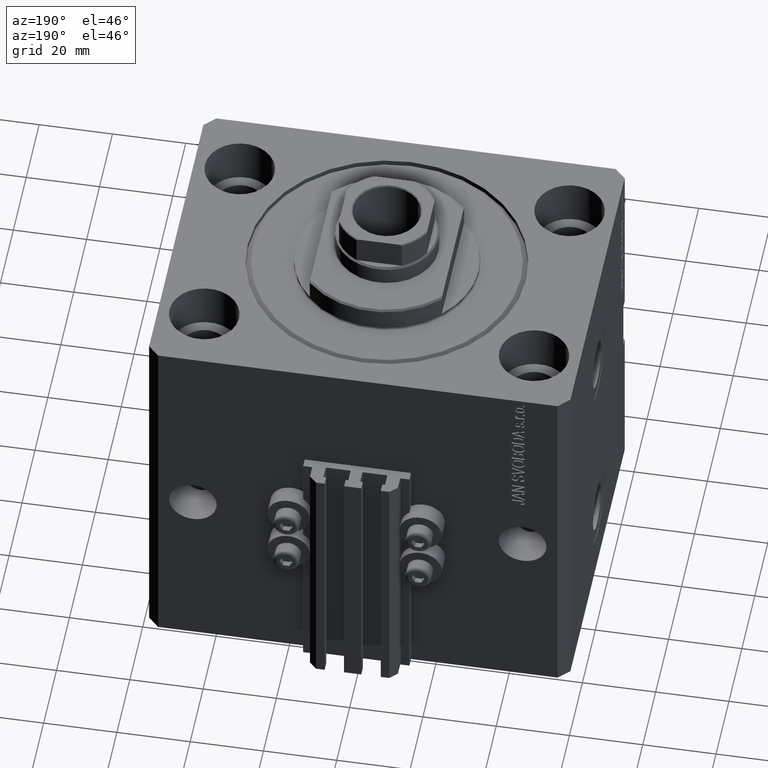
[diagram: clean part render]
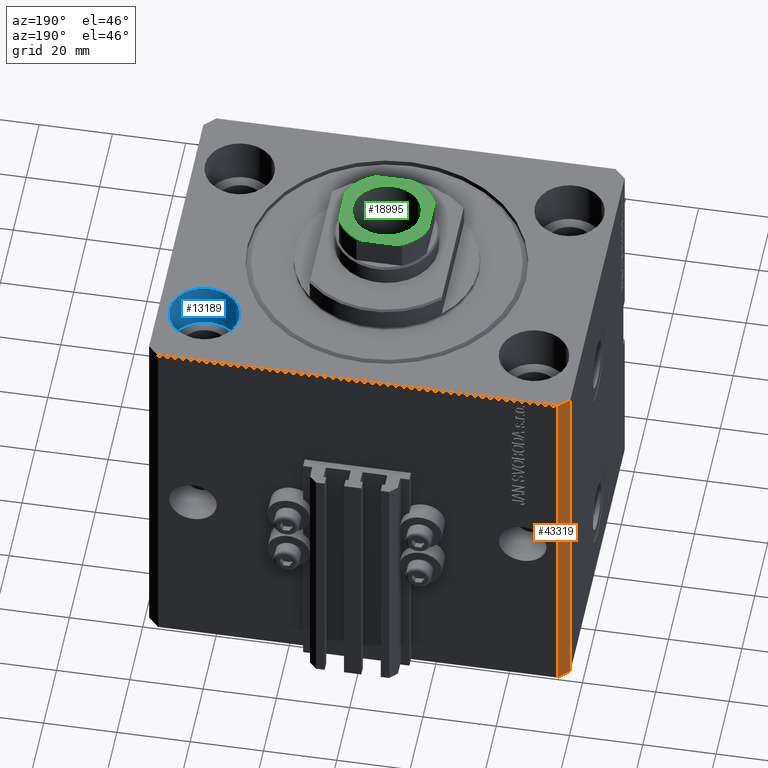
[diagram: same view with three faces highlighted in distinct colors, each labeled with its STEP entity id]
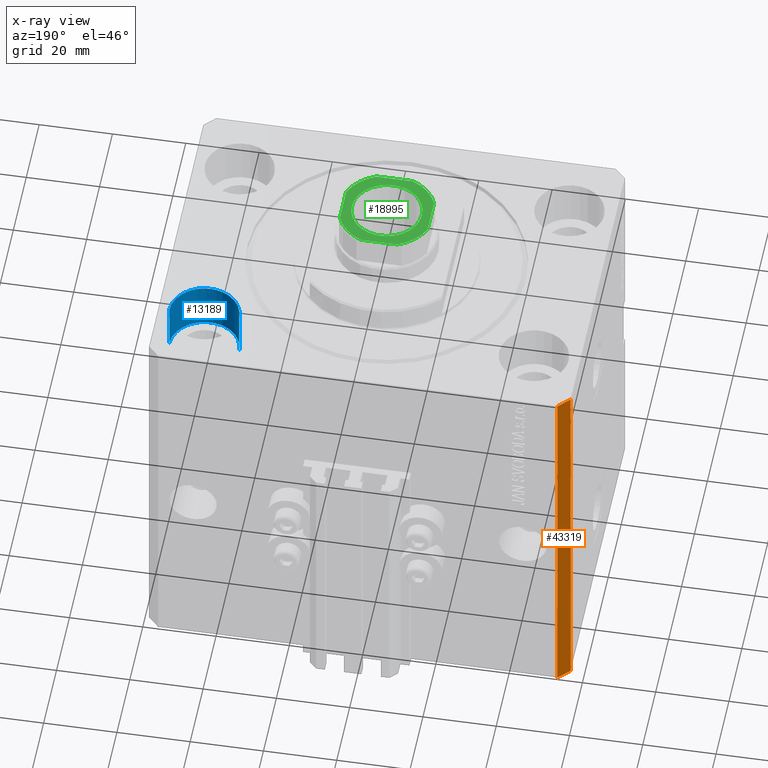
[diagram: x-ray of the same camera — body ghosted, the three highlighted faces saturated]
A machine part, auxiliary view with three faces highlighted in distinct colors.
The next image is the same camera in x-ray (body ghosted, the three faces saturated) — at least one of them is partly hidden behind the body in this view.
Their STEP definitions:

[orange] entity #43319 — the highlighted planar face has unit normal (-0.7071, 0.7071, 0).
#2096 = VERTEX_POINT ( 'NONE', #13279 ) ;
#3675 = DIRECTION ( 'NONE',  ( -0.7071067811865483499, -0.7071067811865466846, 0.000000000000000000 ) ) ;
#5865 = CARTESIAN_POINT ( 'NONE',  ( -54.49999999999999289, 45.00000000000000000, 0.000000000000000000 ) ) ;
#7023 = VERTEX_POINT ( 'NONE', #24731 ) ;
#7608 = LINE ( 'NONE', #37853, #40653 ) ;
#8725 = DIRECTION ( 'NONE',  ( 0.000000000000000000, 0.000000000000000000, 1.000000000000000000 ) ) ;
#9216 = LINE ( 'NONE', #11938, #17080 ) ;
#10331 = EDGE_CURVE ( 'NONE', #32319, #7023, #46811, .T. ) ;
#11938 = CARTESIAN_POINT ( 'NONE',  ( -54.49999999999999289, 45.00000000000000000, -105.0000000000000000 ) ) ;
#13279 = CARTESIAN_POINT ( 'NONE',  ( -54.49999999999999289, 45.00000000000000000, -105.0000000000000000 ) ) ;
#14122 = DIRECTION ( 'NONE',  ( -0.7071067811865483499, -0.7071067811865465735, 0.000000000000000000 ) ) ;
#14288 = ORIENTED_EDGE ( 'NONE', *, *, #30201, .F. ) ;
#14356 = VECTOR ( 'NONE', #27873, 1000.000000000000000 ) ;
#14747 = ORIENTED_EDGE ( 'NONE', *, *, #10331, .T. ) ;
#15787 = DIRECTION ( 'NONE',  ( -0.7071067811865483499, -0.7071067811865466846, 0.000000000000000000 ) ) ;
#16511 = CARTESIAN_POINT ( 'NONE',  ( -54.49999999999999289, 45.00000000000000000, -105.0000000000000000 ) ) ;
#17080 = VECTOR ( 'NONE', #8725, 1000.000000000000000 ) ;
#19499 = LINE ( 'NONE', #16511, #22544 ) ;
#20825 = ORIENTED_EDGE ( 'NONE', *, *, #29103, .T. ) ;
#22544 = VECTOR ( 'NONE', #15787, 1000.000000000000000 ) ;
#24731 = CARTESIAN_POINT ( 'NONE',  ( -57.49999999999998579, 42.00000000000000711, 0.000000000000000000 ) ) ;
#27873 = DIRECTION ( 'NONE',  ( 0.000000000000000000, 0.000000000000000000, 1.000000000000000000 ) ) ;
#29103 = EDGE_CURVE ( 'NONE', #2096, #32319, #19499, .T. ) ;
#30201 = EDGE_CURVE ( 'NONE', #2096, #46062, #9216, .T. ) ;
#31559 = CARTESIAN_POINT ( 'NONE',  ( -57.49999999999998579, 42.00000000000000711, -105.0000000000000000 ) ) ;
#32319 = VERTEX_POINT ( 'NONE', #41061 ) ;
#34052 = EDGE_CURVE ( 'NONE', #46062, #7023, #7608, .T. ) ;
#34076 = EDGE_LOOP ( 'NONE', ( #45140, #14288, #20825, #14747 ) ) ;
#36507 = FACE_OUTER_BOUND ( 'NONE', #34076, .T. ) ;
#36758 = DIRECTION ( 'NONE',  ( -0.7071067811865466846, 0.7071067811865484609, 0.000000000000000000 ) ) ;
#37013 = AXIS2_PLACEMENT_3D ( 'NONE', #48562, #36758, #14122 ) ;
#37853 = CARTESIAN_POINT ( 'NONE',  ( -54.49999999999999289, 45.00000000000000000, 0.000000000000000000 ) ) ;
#40653 = VECTOR ( 'NONE', #3675, 1000.000000000000000 ) ;
#41061 = CARTESIAN_POINT ( 'NONE',  ( -57.49999999999998579, 42.00000000000000711, -105.0000000000000000 ) ) ;
#41191 = PLANE ( 'NONE',  #37013 ) ;
#43319 = ADVANCED_FACE ( 'NONE', ( #36507 ), #41191, .T. ) ;
#45140 = ORIENTED_EDGE ( 'NONE', *, *, #34052, .F. ) ;
#46062 = VERTEX_POINT ( 'NONE', #5865 ) ;
#46811 = LINE ( 'NONE', #31559, #14356 ) ;
#48562 = CARTESIAN_POINT ( 'NONE',  ( -54.49999999999999289, 45.00000000000000000, -105.0000000000000000 ) ) ;

[blue] entity #13189 — the highlighted cylindrical surface (edge-blend (fillet) strip) has radius 9.5 mm, axis along (0, 0, 1).
#294 = EDGE_CURVE ( 'NONE', #9908, #3327, #17566, .T. ) ;
#867 = CIRCLE ( 'NONE', #1638, 9.500000000000001776 ) ;
#1035 = CARTESIAN_POINT ( 'NONE',  ( 45.00000000000000000, 27.50000000000001776, -13.00000000000000000 ) ) ;
#1638 = AXIS2_PLACEMENT_3D ( 'NONE', #1035, #34974, #46308 ) ;
#3327 = VERTEX_POINT ( 'NONE', #46402 ) ;
#4339 = DIRECTION ( 'NONE',  ( 0.000000000000000000, 0.000000000000000000, 1.000000000000000000 ) ) ;
#4678 = ORIENTED_EDGE ( 'NONE', *, *, #294, .T. ) ;
#5313 = EDGE_CURVE ( 'NONE', #9908, #7510, #867, .T. ) ;
#6241 = DIRECTION ( 'NONE',  ( -0.000000000000000000, -0.000000000000000000, 1.000000000000000000 ) ) ;
#7102 = CARTESIAN_POINT ( 'NONE',  ( 35.50000000000000000, 27.50000000000001776, -13.00000000000000000 ) ) ;
#7510 = VERTEX_POINT ( 'NONE', #12780 ) ;
#8878 = CIRCLE ( 'NONE', #15170, 9.500000000000001776 ) ;
#9629 = EDGE_CURVE ( 'NONE', #3327, #36798, #8878, .T. ) ;
#9908 = VERTEX_POINT ( 'NONE', #7102 ) ;
#9958 = EDGE_LOOP ( 'NONE', ( #17734, #4678, #46975, #41838 ) ) ;
#12780 = CARTESIAN_POINT ( 'NONE',  ( 54.50000000000000000, 27.50000000000001776, -13.00000000000000000 ) ) ;
#13189 = ADVANCED_FACE ( 'NONE', ( #20134 ), #25042, .F. ) ;
#15170 = AXIS2_PLACEMENT_3D ( 'NONE', #45193, #4339, #41501 ) ;
#15455 = CARTESIAN_POINT ( 'NONE',  ( 54.50000000000000000, 27.50000000000001776, 0.000000000000000000 ) ) ;
#17122 = LINE ( 'NONE', #21071, #21676 ) ;
#17566 = LINE ( 'NONE', #39952, #40113 ) ;
#17734 = ORIENTED_EDGE ( 'NONE', *, *, #5313, .F. ) ;
#18949 = EDGE_CURVE ( 'NONE', #7510, #36798, #17122, .T. ) ;
#20134 = FACE_OUTER_BOUND ( 'NONE', #9958, .T. ) ;
#21071 = CARTESIAN_POINT ( 'NONE',  ( 54.50000000000000000, 27.50000000000001776, -13.00000000000000000 ) ) ;
#21676 = VECTOR ( 'NONE', #39995, 1000.000000000000000 ) ;
#24553 = DIRECTION ( 'NONE',  ( 1.000000000000000000, 0.000000000000000000, 0.000000000000000000 ) ) ;
#24799 = CARTESIAN_POINT ( 'NONE',  ( 45.00000000000000000, 27.50000000000001776, -13.00000000000000000 ) ) ;
#25042 = CYLINDRICAL_SURFACE ( 'NONE', #25503, 9.500000000000001776 ) ;
#25503 = AXIS2_PLACEMENT_3D ( 'NONE', #24799, #40030, #24553 ) ;
#34974 = DIRECTION ( 'NONE',  ( 0.000000000000000000, 0.000000000000000000, 1.000000000000000000 ) ) ;
#36798 = VERTEX_POINT ( 'NONE', #15455 ) ;
#39952 = CARTESIAN_POINT ( 'NONE',  ( 35.50000000000000000, 27.50000000000001776, -13.00000000000000000 ) ) ;
#39995 = DIRECTION ( 'NONE',  ( -0.000000000000000000, -0.000000000000000000, 1.000000000000000000 ) ) ;
#40030 = DIRECTION ( 'NONE',  ( -0.000000000000000000, -0.000000000000000000, 1.000000000000000000 ) ) ;
#40113 = VECTOR ( 'NONE', #6241, 1000.000000000000000 ) ;
#41501 = DIRECTION ( 'NONE',  ( 1.000000000000000000, 0.000000000000000000, 0.000000000000000000 ) ) ;
#41838 = ORIENTED_EDGE ( 'NONE', *, *, #18949, .F. ) ;
#45193 = CARTESIAN_POINT ( 'NONE',  ( 45.00000000000000000, 27.50000000000001776, 0.000000000000000000 ) ) ;
#46308 = DIRECTION ( 'NONE',  ( 1.000000000000000000, 0.000000000000000000, 0.000000000000000000 ) ) ;
#46402 = CARTESIAN_POINT ( 'NONE',  ( 35.50000000000000000, 27.50000000000001776, 0.000000000000000000 ) ) ;
#46975 = ORIENTED_EDGE ( 'NONE', *, *, #9629, .T. ) ;

[green] entity #18995 — the highlighted planar face has unit normal (0, 0, 1).
#111 = CARTESIAN_POINT ( 'NONE',  ( -11.99999999999999822, 11.99999999999999822, 107.0999999999999943 ) ) ;
#561 = CARTESIAN_POINT ( 'NONE',  ( 12.00000000000000178, 4.999999999999994671, 107.0999999999999943 ) ) ;
#732 = VERTEX_POINT ( 'NONE', #31427 ) ;
#1316 = ORIENTED_EDGE ( 'NONE', *, *, #30681, .T. ) ;
#1999 = DIRECTION ( 'NONE',  ( -0.000000000000000000, 0.000000000000000000, 1.000000000000000000 ) ) ;
#2717 = VERTEX_POINT ( 'NONE', #7485 ) ;
#3244 = CARTESIAN_POINT ( 'NONE',  ( 0.000000000000000000, 0.000000000000000000, 107.0999999999999943 ) ) ;
#3324 = ORIENTED_EDGE ( 'NONE', *, *, #16000, .T. ) ;
#4187 = VERTEX_POINT ( 'NONE', #22398 ) ;
#4352 = AXIS2_PLACEMENT_3D ( 'NONE', #17856, #24514, #39513 ) ;
#4741 = CARTESIAN_POINT ( 'NONE',  ( -9.550000000000002487, 1.169537693185722755E-15, 107.0999999999999943 ) ) ;
#6527 = FACE_BOUND ( 'NONE', #35390, .T. ) ;
#6745 = LINE ( 'NONE', #17332, #23453 ) ;
#7028 = AXIS2_PLACEMENT_3D ( 'NONE', #23861, #46720, #46482 ) ;
#7087 = EDGE_LOOP ( 'NONE', ( #45353, #34307, #44555, #1316, #3324, #26399, #38704, #40168 ) ) ;
#7485 = CARTESIAN_POINT ( 'NONE',  ( -11.99999999999999822, 5.000000000000000888, 107.0999999999999943 ) ) ;
#9374 = CIRCLE ( 'NONE', #7028, 13.00000000000000000 ) ;
#10113 = VERTEX_POINT ( 'NONE', #16669 ) ;
#11600 = CARTESIAN_POINT ( 'NONE',  ( -4.999999999999992895, -12.00000000000000178, 107.0999999999999943 ) ) ;
#12297 = EDGE_CURVE ( 'NONE', #37255, #27735, #33815, .T. ) ;
#12717 = CARTESIAN_POINT ( 'NONE',  ( 0.000000000000000000, 0.000000000000000000, 107.0999999999999943 ) ) ;
#12874 = VECTOR ( 'NONE', #25474, 1000.000000000000000 ) ;
#12982 = VERTEX_POINT ( 'NONE', #4741 ) ;
#14067 = DIRECTION ( 'NONE',  ( 1.000000000000000000, 0.000000000000000000, 0.000000000000000000 ) ) ;
#14826 = DIRECTION ( 'NONE',  ( 0.000000000000000000, -0.000000000000000000, -1.000000000000000000 ) ) ;
#15064 = DIRECTION ( 'NONE',  ( 1.000000000000000000, 0.000000000000000000, 0.000000000000000000 ) ) ;
#15289 = CIRCLE ( 'NONE', #45153, 9.550000000000002487 ) ;
#16000 = EDGE_CURVE ( 'NONE', #732, #29550, #22725, .T. ) ;
#16200 = EDGE_CURVE ( 'NONE', #27735, #2717, #43656, .T. ) ;
#16669 = CARTESIAN_POINT ( 'NONE',  ( 4.999999999999993783, -12.00000000000000178, 107.0999999999999943 ) ) ;
#17332 = CARTESIAN_POINT ( 'NONE',  ( -11.99999999999999645, -12.00000000000000178, 107.0999999999999943 ) ) ;
#17769 = EDGE_CURVE ( 'NONE', #33541, #12982, #30271, .T. ) ;
#17805 = VECTOR ( 'NONE', #35007, 1000.000000000000000 ) ;
#17809 = AXIS2_PLACEMENT_3D ( 'NONE', #12717, #20123, #46683 ) ;
#17825 = DIRECTION ( 'NONE',  ( 1.000000000000000000, 7.228014483236695816E-17, 0.000000000000000000 ) ) ;
#17856 = CARTESIAN_POINT ( 'NONE',  ( 0.000000000000000000, 0.000000000000000000, 107.0999999999999943 ) ) ;
#17894 = CARTESIAN_POINT ( 'NONE',  ( 9.550000000000002487, 0.000000000000000000, 107.0999999999999943 ) ) ;
#18995 = ADVANCED_FACE ( 'NONE', ( #6527, #28198 ), #43209, .T. ) ;
#20123 = DIRECTION ( 'NONE',  ( 0.000000000000000000, -0.000000000000000000, -1.000000000000000000 ) ) ;
#21408 = EDGE_CURVE ( 'NONE', #2717, #4187, #23956, .T. ) ;
#22398 = CARTESIAN_POINT ( 'NONE',  ( -11.99999999999999822, -5.000000000000001776, 107.0999999999999943 ) ) ;
#22725 = LINE ( 'NONE', #42379, #31079 ) ;
#23061 = CARTESIAN_POINT ( 'NONE',  ( -11.99999999999999822, 11.99999999999999822, 107.0999999999999943 ) ) ;
#23453 = VECTOR ( 'NONE', #17825, 1000.000000000000000 ) ;
#23719 = AXIS2_PLACEMENT_3D ( 'NONE', #3244, #40885, #14067 ) ;
#23830 = EDGE_CURVE ( 'NONE', #12982, #33541, #15289, .T. ) ;
#23861 = CARTESIAN_POINT ( 'NONE',  ( 0.000000000000000000, 0.000000000000000000, 107.0999999999999943 ) ) ;
#23956 = LINE ( 'NONE', #23061, #17805 ) ;
#24514 = DIRECTION ( 'NONE',  ( -0.000000000000000000, 0.000000000000000000, 1.000000000000000000 ) ) ;
#25474 = DIRECTION ( 'NONE',  ( -1.000000000000000000, -7.228014483236695816E-17, -0.000000000000000000 ) ) ;
#25906 = CARTESIAN_POINT ( 'NONE',  ( 0.000000000000000000, 0.000000000000000000, 107.0999999999999943 ) ) ;
#26399 = ORIENTED_EDGE ( 'NONE', *, *, #43697, .T. ) ;
#27735 = VERTEX_POINT ( 'NONE', #45680 ) ;
#28198 = FACE_OUTER_BOUND ( 'NONE', #7087, .T. ) ;
#28847 = AXIS2_PLACEMENT_3D ( 'NONE', #40401, #40647, #36937 ) ;
#29550 = VERTEX_POINT ( 'NONE', #561 ) ;
#29656 = CIRCLE ( 'NONE', #28847, 13.00000000000000000 ) ;
#30271 = CIRCLE ( 'NONE', #17809, 9.550000000000002487 ) ;
#30681 = EDGE_CURVE ( 'NONE', #10113, #732, #29656, .T. ) ;
#31079 = VECTOR ( 'NONE', #33776, 1000.000000000000000 ) ;
#31427 = CARTESIAN_POINT ( 'NONE',  ( 12.00000000000000178, -4.999999999999990230, 107.0999999999999943 ) ) ;
#32555 = EDGE_CURVE ( 'NONE', #45641, #10113, #6745, .T. ) ;
#33541 = VERTEX_POINT ( 'NONE', #17894 ) ;
#33776 = DIRECTION ( 'NONE',  ( -1.445602896647339163E-16, 1.000000000000000000, -0.000000000000000000 ) ) ;
#33815 = LINE ( 'NONE', #111, #12874 ) ;
#34307 = ORIENTED_EDGE ( 'NONE', *, *, #38605, .T. ) ;
#34973 = DIRECTION ( 'NONE',  ( 1.000000000000000000, 0.000000000000000000, 0.000000000000000000 ) ) ;
#35007 = DIRECTION ( 'NONE',  ( 7.228014483236695816E-17, -1.000000000000000000, 0.000000000000000000 ) ) ;
#35058 = CARTESIAN_POINT ( 'NONE',  ( 5.000000000000002665, 12.00000000000000000, 107.0999999999999943 ) ) ;
#35390 = EDGE_LOOP ( 'NONE', ( #46790, #41353 ) ) ;
#35704 = CARTESIAN_POINT ( 'NONE',  ( 0.000000000000000000, 0.000000000000000000, 107.0999999999999943 ) ) ;
#36937 = DIRECTION ( 'NONE',  ( 1.000000000000000000, 0.000000000000000000, 0.000000000000000000 ) ) ;
#37255 = VERTEX_POINT ( 'NONE', #35058 ) ;
#38605 = EDGE_CURVE ( 'NONE', #4187, #45641, #9374, .T. ) ;
#38704 = ORIENTED_EDGE ( 'NONE', *, *, #12297, .T. ) ;
#39513 = DIRECTION ( 'NONE',  ( 1.000000000000000000, 0.000000000000000000, 0.000000000000000000 ) ) ;
#40168 = ORIENTED_EDGE ( 'NONE', *, *, #16200, .T. ) ;
#40401 = CARTESIAN_POINT ( 'NONE',  ( 0.000000000000000000, 0.000000000000000000, 107.0999999999999943 ) ) ;
#40647 = DIRECTION ( 'NONE',  ( -0.000000000000000000, 0.000000000000000000, 1.000000000000000000 ) ) ;
#40885 = DIRECTION ( 'NONE',  ( -0.000000000000000000, 0.000000000000000000, 1.000000000000000000 ) ) ;
#41353 = ORIENTED_EDGE ( 'NONE', *, *, #23830, .T. ) ;
#42379 = CARTESIAN_POINT ( 'NONE',  ( 12.00000000000000000, 12.00000000000000000, 107.0999999999999943 ) ) ;
#43209 = PLANE ( 'NONE',  #4352 ) ;
#43656 = CIRCLE ( 'NONE', #48355, 13.00000000000000000 ) ;
#43697 = EDGE_CURVE ( 'NONE', #29550, #37255, #46469, .T. ) ;
#44555 = ORIENTED_EDGE ( 'NONE', *, *, #32555, .T. ) ;
#45153 = AXIS2_PLACEMENT_3D ( 'NONE', #25906, #14826, #15064 ) ;
#45353 = ORIENTED_EDGE ( 'NONE', *, *, #21408, .T. ) ;
#45641 = VERTEX_POINT ( 'NONE', #11600 ) ;
#45680 = CARTESIAN_POINT ( 'NONE',  ( -5.000000000000001776, 11.99999999999999822, 107.0999999999999943 ) ) ;
#46469 = CIRCLE ( 'NONE', #23719, 13.00000000000000000 ) ;
#46482 = DIRECTION ( 'NONE',  ( 1.000000000000000000, 0.000000000000000000, 0.000000000000000000 ) ) ;
#46683 = DIRECTION ( 'NONE',  ( 1.000000000000000000, 0.000000000000000000, 0.000000000000000000 ) ) ;
#46720 = DIRECTION ( 'NONE',  ( -0.000000000000000000, 0.000000000000000000, 1.000000000000000000 ) ) ;
#46790 = ORIENTED_EDGE ( 'NONE', *, *, #17769, .T. ) ;
#48355 = AXIS2_PLACEMENT_3D ( 'NONE', #35704, #1999, #34973 ) ;